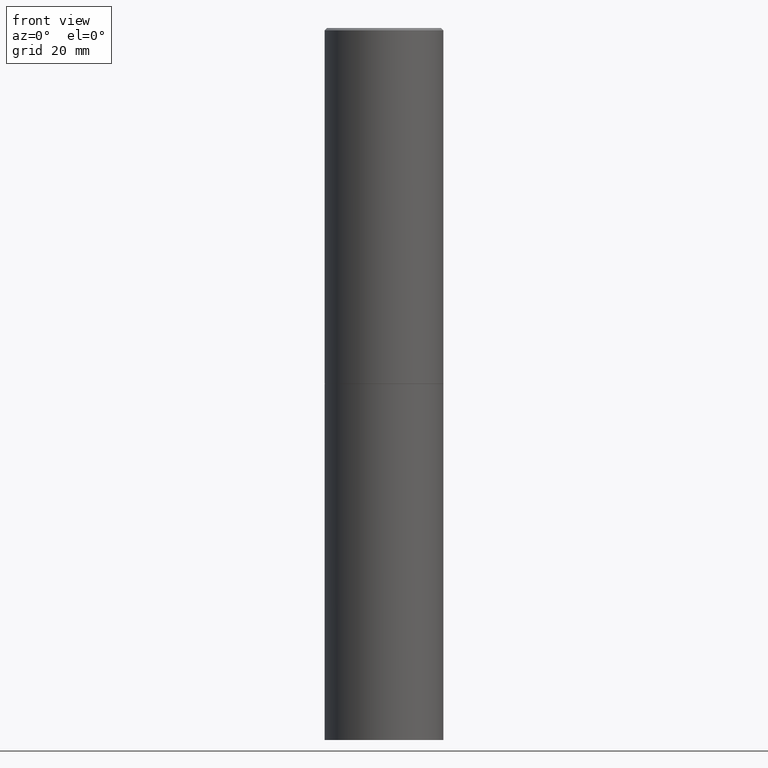
[diagram: clean part render]
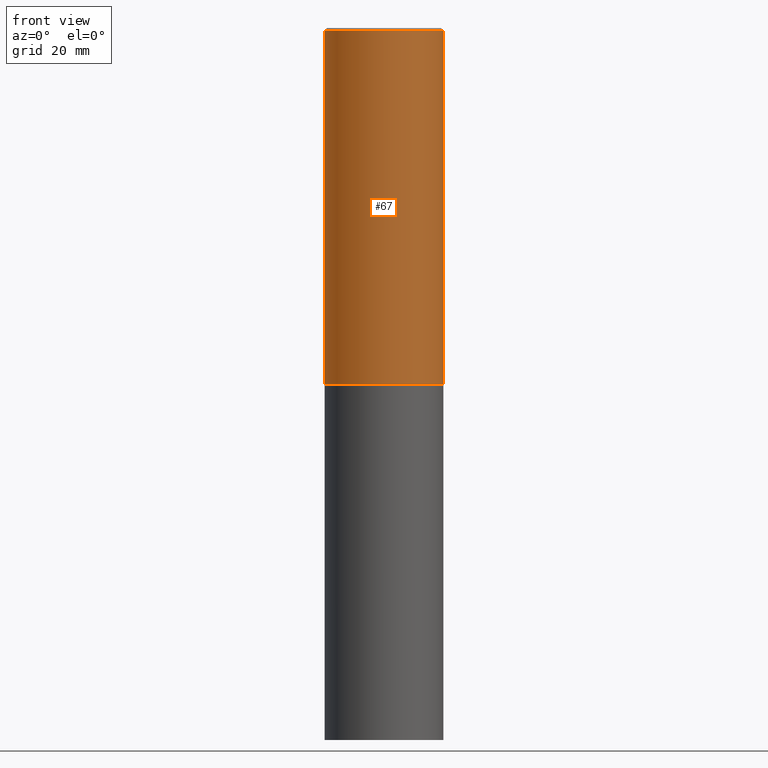
[diagram: same view with one face highlighted and labeled with its STEP entity id]
A machine part, front view. The second image highlights one B-rep face of the part: STEP entity #67.
In plain terms, the highlighted cylindrical surface (partial cylindrical patch) has radius 12.5006 mm, axis along (-0, 0, 1).
Its self-contained STEP definition (entity closure, byte-faithful):
#1 = LINE ( 'NONE', #234, #273 ) ;
#24 = EDGE_CURVE ( 'NONE', #87, #362, #218, .T. ) ;
#28 = CARTESIAN_POINT ( 'NONE',  ( 0.4921499999999996988, -3.446223716380120377E-15, -0.02000000000000009409 ) ) ;
#32 = CIRCLE ( 'NONE', #79, 0.4921499999999999764 ) ;
#38 = DIRECTION ( 'NONE',  ( -2.445468806185136597E-29, 3.491481338843145583E-15, 1.000000000000000000 ) ) ;
#44 = CARTESIAN_POINT ( 'NONE',  ( -0.4921499999999996988, 3.366835455046430506E-15, -0.02000000000000009409 ) ) ;
#58 = ORIENTED_EDGE ( 'NONE', *, *, #346, .T. ) ;
#59 = AXIS2_PLACEMENT_3D ( 'NONE', #275, #320, #201 ) ;
#67 = ADVANCED_FACE ( 'NONE', ( #222 ), #92, .T. ) ;
#79 = AXIS2_PLACEMENT_3D ( 'NONE', #350, #236, #98 ) ;
#85 = DIRECTION ( 'NONE',  ( -2.445468806185136877E-29, 3.491481338843145188E-15, 1.000000000000000000 ) ) ;
#87 = VERTEX_POINT ( 'NONE', #123 ) ;
#92 = CYLINDRICAL_SURFACE ( 'NONE', #59, 0.4921499999999998098 ) ;
#94 = VERTEX_POINT ( 'NONE', #28 ) ;
#98 = DIRECTION ( 'NONE',  ( 1.000000000000000000, -6.982962677686265922E-15, 0.000000000000000000 ) ) ;
#123 = CARTESIAN_POINT ( 'NONE',  ( -0.4921499999999999764, -1.690881473276754954E-15, -2.951700000000000212 ) ) ;
#139 = CARTESIAN_POINT ( 'NONE',  ( -0.4921499999999998098, 3.496936074043331714E-15, -2.420853904668950949E-29 ) ) ;
#141 = EDGE_CURVE ( 'NONE', #342, #94, #1, .T. ) ;
#193 = ORIENTED_EDGE ( 'NONE', *, *, #335, .F. ) ;
#201 = DIRECTION ( 'NONE',  ( 1.000000000000000000, -6.982962677686265922E-15, 4.876176775795935793E-29 ) ) ;
#212 = CARTESIAN_POINT ( 'NONE',  ( 0.4921499999999999764, -1.374247054968660936E-14, -2.951700000000000212 ) ) ;
#216 = EDGE_LOOP ( 'NONE', ( #328, #58, #255, #193 ) ) ;
#218 = LINE ( 'NONE', #139, #293 ) ;
#222 = FACE_OUTER_BOUND ( 'NONE', #216, .T. ) ;
#234 = CARTESIAN_POINT ( 'NONE',  ( 0.4921499999999998098, -3.436665081823294593E-15, 2.399810400207968762E-29 ) ) ;
#236 = DIRECTION ( 'NONE',  ( -2.445468806185136597E-29, 3.491481338843145583E-15, 1.000000000000000000 ) ) ;
#240 = DIRECTION ( 'NONE',  ( 1.000000000000000000, -6.982962677686265922E-15, 0.000000000000000000 ) ) ;
#255 = ORIENTED_EDGE ( 'NONE', *, *, #141, .T. ) ;
#273 = VECTOR ( 'NONE', #299, 39.37007874015748143 ) ;
#275 = CARTESIAN_POINT ( 'NONE',  ( 0.000000000000000000, 0.000000000000000000, 0.000000000000000000 ) ) ;
#289 = CARTESIAN_POINT ( 'NONE',  ( 4.890937612370296805E-31, -6.982962677686323656E-17, -0.02000000000000009409 ) ) ;
#293 = VECTOR ( 'NONE', #85, 39.37007874015748143 ) ;
#299 = DIRECTION ( 'NONE',  ( -2.445468806185136877E-29, 3.491481338843145188E-15, 1.000000000000000000 ) ) ;
#320 = DIRECTION ( 'NONE',  ( -2.445468806185136597E-29, 3.491481338843145583E-15, 1.000000000000000000 ) ) ;
#327 = AXIS2_PLACEMENT_3D ( 'NONE', #289, #38, #240 ) ;
#328 = ORIENTED_EDGE ( 'NONE', *, *, #24, .F. ) ;
#335 = EDGE_CURVE ( 'NONE', #362, #94, #348, .T. ) ;
#342 = VERTEX_POINT ( 'NONE', #212 ) ;
#346 = EDGE_CURVE ( 'NONE', #87, #342, #32, .T. ) ;
#348 = CIRCLE ( 'NONE', #327, 0.4921499999999996988 ) ;
#350 = CARTESIAN_POINT ( 'NONE',  ( 7.218290275216666916E-29, -1.030580546786331359E-14, -2.951700000000000212 ) ) ;
#362 = VERTEX_POINT ( 'NONE', #44 ) ;